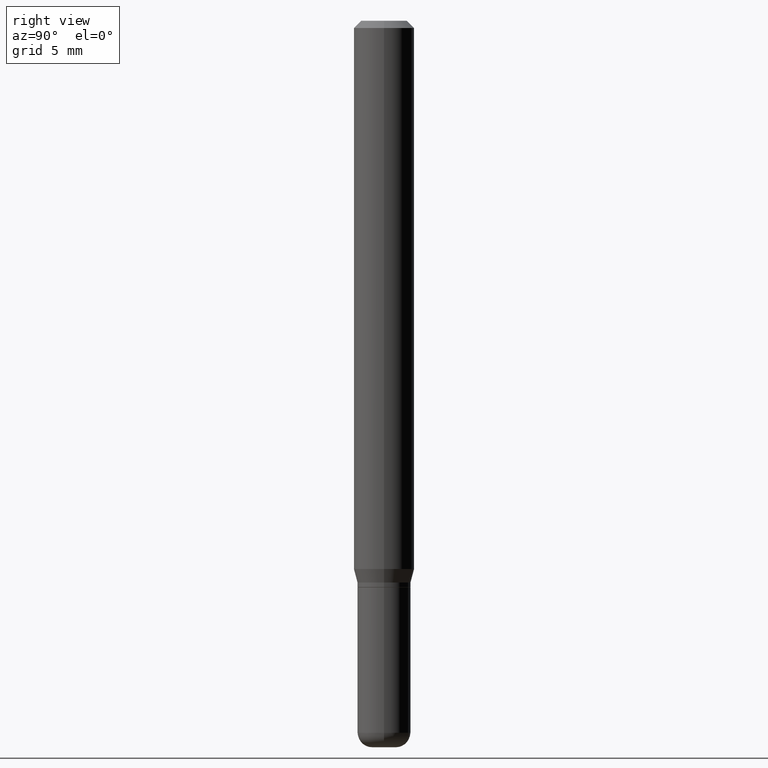
[diagram: clean part render]
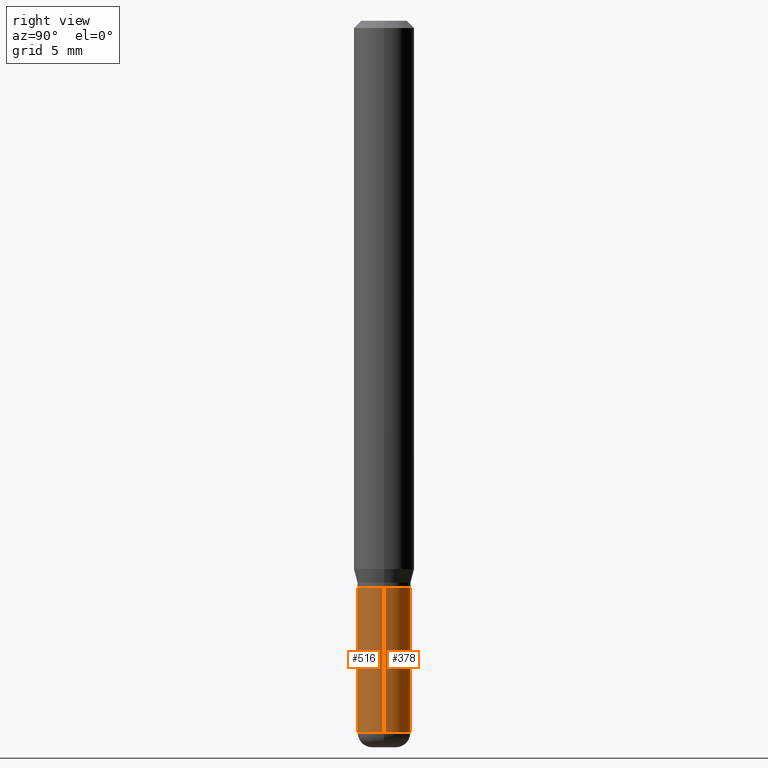
[diagram: same view with one multi-face feature highlighted, each face labeled with its STEP entity id]
A machine part, right view. The highlighted faces form ONE feature: a constant-radius fillet chain: 2 tangent blend faces with common blend radius 1.397 mm. The faces share edges in the B-rep.
Their STEP definitions:
[1] entity #516 (Cylinder):
#9 = DIRECTION ( 'NONE',  ( -2.445468806185136877E-29, 3.491481338843145188E-15, 1.000000000000000000 ) ) ;
#10 = DIRECTION ( 'NONE',  ( 1.000000000000000000, -6.982962677686265922E-15, 4.876176775795935793E-29 ) ) ;
#33 = EDGE_CURVE ( 'NONE', #62, #453, #262, .T. ) ;
#40 = DIRECTION ( 'NONE',  ( 1.000000000000000000, -6.982962677686265133E-15, 0.000000000000000000 ) ) ;
#45 = CARTESIAN_POINT ( 'NONE',  ( -0.05500000000000011130, -4.217956862604895410E-15, -1.470000000000000195 ) ) ;
#53 = DIRECTION ( 'NONE',  ( -2.445468806185136597E-29, 3.491481338843145583E-15, 1.000000000000000000 ) ) ;
#62 = VERTEX_POINT ( 'NONE', #403 ) ;
#82 = ORIENTED_EDGE ( 'NONE', *, *, #133, .F. ) ;
#85 = DIRECTION ( 'NONE',  ( -2.445468806185136597E-29, 3.491481338843145583E-15, 1.000000000000000000 ) ) ;
#88 = CIRCLE ( 'NONE', #408, 0.05500000000000000028 ) ;
#97 = CARTESIAN_POINT ( 'NONE',  ( -0.05500000000000006273, 3.907985046680555479E-16, -2.705414299640201165E-30 ) ) ;
#129 = ORIENTED_EDGE ( 'NONE', *, *, #280, .T. ) ;
#133 = EDGE_CURVE ( 'NONE', #456, #160, #334, .T. ) ;
#154 = EDGE_LOOP ( 'NONE', ( #82, #129, #333, #430 ) ) ;
#160 = VERTEX_POINT ( 'NONE', #166 ) ;
#166 = CARTESIAN_POINT ( 'NONE',  ( -0.05500000000000000028, -4.217956862604896988E-15, -1.170000000000000151 ) ) ;
#167 = FACE_OUTER_BOUND ( 'NONE', #154, .T. ) ;
#221 = CIRCLE ( 'NONE', #393, 0.05500000000000011130 ) ;
#244 = CYLINDRICAL_SURFACE ( 'NONE', #477, 0.05500000000000006273 ) ;
#262 = LINE ( 'NONE', #461, #480 ) ;
#280 = EDGE_CURVE ( 'NONE', #456, #62, #221, .T. ) ;
#333 = ORIENTED_EDGE ( 'NONE', *, *, #33, .T. ) ;
#334 = LINE ( 'NONE', #97, #490 ) ;
#341 = DIRECTION ( 'NONE',  ( -2.445468806185136597E-29, 3.491481338843145583E-15, 1.000000000000000000 ) ) ;
#393 = AXIS2_PLACEMENT_3D ( 'NONE', #460, #341, #40 ) ;
#395 = DIRECTION ( 'NONE',  ( 1.000000000000000000, -6.982962677686262766E-15, 0.000000000000000000 ) ) ;
#403 = CARTESIAN_POINT ( 'NONE',  ( 0.05500000000000011130, -5.516540515372169792E-15, -1.470000000000000195 ) ) ;
#408 = AXIS2_PLACEMENT_3D ( 'NONE', #474, #85, #395 ) ;
#417 = DIRECTION ( 'NONE',  ( -2.445468806185136877E-29, 3.491481338843145188E-15, 1.000000000000000000 ) ) ;
#430 = ORIENTED_EDGE ( 'NONE', *, *, #455, .F. ) ;
#435 = CARTESIAN_POINT ( 'NONE',  ( 0.05500000000000000028, -4.469096113719225052E-15, -1.170000000000000151 ) ) ;
#446 = CARTESIAN_POINT ( 'NONE',  ( 0.000000000000000000, 0.000000000000000000, 0.000000000000000000 ) ) ;
#453 = VERTEX_POINT ( 'NONE', #435 ) ;
#455 = EDGE_CURVE ( 'NONE', #160, #453, #88, .T. ) ;
#456 = VERTEX_POINT ( 'NONE', #45 ) ;
#460 = CARTESIAN_POINT ( 'NONE',  ( 3.594839145092150820E-29, -5.132477568099424807E-15, -1.470000000000000195 ) ) ;
#461 = CARTESIAN_POINT ( 'NONE',  ( 0.05500000000000006273, -3.840629472727450832E-16, 2.681897226687767629E-30 ) ) ;
#474 = CARTESIAN_POINT ( 'NONE',  ( 2.861198503236610065E-29, -4.085033166446480067E-15, -1.170000000000000151 ) ) ;
#477 = AXIS2_PLACEMENT_3D ( 'NONE', #446, #53, #10 ) ;
#480 = VECTOR ( 'NONE', #417, 39.37007874015748143 ) ;
#490 = VECTOR ( 'NONE', #9, 39.37007874015748143 ) ;
#516 = ADVANCED_FACE ( 'NONE', ( #167 ), #244, .T. ) ;
[2] entity #378 (Cylinder):
#5 = FACE_OUTER_BOUND ( 'NONE', #236, .T. ) ;
#9 = DIRECTION ( 'NONE',  ( -2.445468806185136877E-29, 3.491481338843145188E-15, 1.000000000000000000 ) ) ;
#23 = CARTESIAN_POINT ( 'NONE',  ( 2.861198503236610065E-29, -4.085033166446480067E-15, -1.170000000000000151 ) ) ;
#28 = ORIENTED_EDGE ( 'NONE', *, *, #33, .F. ) ;
#33 = EDGE_CURVE ( 'NONE', #62, #453, #262, .T. ) ;
#45 = CARTESIAN_POINT ( 'NONE',  ( -0.05500000000000011130, -4.217956862604895410E-15, -1.470000000000000195 ) ) ;
#51 = CARTESIAN_POINT ( 'NONE',  ( 3.594839145092150820E-29, -5.132477568099424807E-15, -1.470000000000000195 ) ) ;
#56 = AXIS2_PLACEMENT_3D ( 'NONE', #155, #159, #518 ) ;
#62 = VERTEX_POINT ( 'NONE', #403 ) ;
#92 = AXIS2_PLACEMENT_3D ( 'NONE', #23, #448, #283 ) ;
#97 = CARTESIAN_POINT ( 'NONE',  ( -0.05500000000000006273, 3.907985046680555479E-16, -2.705414299640201165E-30 ) ) ;
#121 = EDGE_CURVE ( 'NONE', #453, #160, #132, .T. ) ;
#122 = CYLINDRICAL_SURFACE ( 'NONE', #56, 0.05500000000000006273 ) ;
#132 = CIRCLE ( 'NONE', #92, 0.05500000000000000028 ) ;
#133 = EDGE_CURVE ( 'NONE', #456, #160, #334, .T. ) ;
#155 = CARTESIAN_POINT ( 'NONE',  ( 0.000000000000000000, 0.000000000000000000, 0.000000000000000000 ) ) ;
#159 = DIRECTION ( 'NONE',  ( -2.445468806185136597E-29, 3.491481338843145583E-15, 1.000000000000000000 ) ) ;
#160 = VERTEX_POINT ( 'NONE', #166 ) ;
#166 = CARTESIAN_POINT ( 'NONE',  ( -0.05500000000000000028, -4.217956862604896988E-15, -1.170000000000000151 ) ) ;
#236 = EDGE_LOOP ( 'NONE', ( #486, #309, #316, #28 ) ) ;
#262 = LINE ( 'NONE', #461, #480 ) ;
#283 = DIRECTION ( 'NONE',  ( 1.000000000000000000, -6.982962677686262766E-15, 0.000000000000000000 ) ) ;
#309 = ORIENTED_EDGE ( 'NONE', *, *, #133, .T. ) ;
#315 = CIRCLE ( 'NONE', #399, 0.05500000000000011130 ) ;
#316 = ORIENTED_EDGE ( 'NONE', *, *, #121, .F. ) ;
#334 = LINE ( 'NONE', #97, #490 ) ;
#370 = EDGE_CURVE ( 'NONE', #62, #456, #315, .T. ) ;
#378 = ADVANCED_FACE ( 'NONE', ( #5 ), #122, .T. ) ;
#399 = AXIS2_PLACEMENT_3D ( 'NONE', #51, #478, #440 ) ;
#403 = CARTESIAN_POINT ( 'NONE',  ( 0.05500000000000011130, -5.516540515372169792E-15, -1.470000000000000195 ) ) ;
#417 = DIRECTION ( 'NONE',  ( -2.445468806185136877E-29, 3.491481338843145188E-15, 1.000000000000000000 ) ) ;
#435 = CARTESIAN_POINT ( 'NONE',  ( 0.05500000000000000028, -4.469096113719225052E-15, -1.170000000000000151 ) ) ;
#440 = DIRECTION ( 'NONE',  ( 1.000000000000000000, -6.982962677686265133E-15, 0.000000000000000000 ) ) ;
#448 = DIRECTION ( 'NONE',  ( -2.445468806185136597E-29, 3.491481338843145583E-15, 1.000000000000000000 ) ) ;
#453 = VERTEX_POINT ( 'NONE', #435 ) ;
#456 = VERTEX_POINT ( 'NONE', #45 ) ;
#461 = CARTESIAN_POINT ( 'NONE',  ( 0.05500000000000006273, -3.840629472727450832E-16, 2.681897226687767629E-30 ) ) ;
#478 = DIRECTION ( 'NONE',  ( -2.445468806185136597E-29, 3.491481338843145583E-15, 1.000000000000000000 ) ) ;
#480 = VECTOR ( 'NONE', #417, 39.37007874015748143 ) ;
#486 = ORIENTED_EDGE ( 'NONE', *, *, #370, .T. ) ;
#490 = VECTOR ( 'NONE', #9, 39.37007874015748143 ) ;
#518 = DIRECTION ( 'NONE',  ( 1.000000000000000000, -6.982962677686265922E-15, 4.876176775795935793E-29 ) ) ;